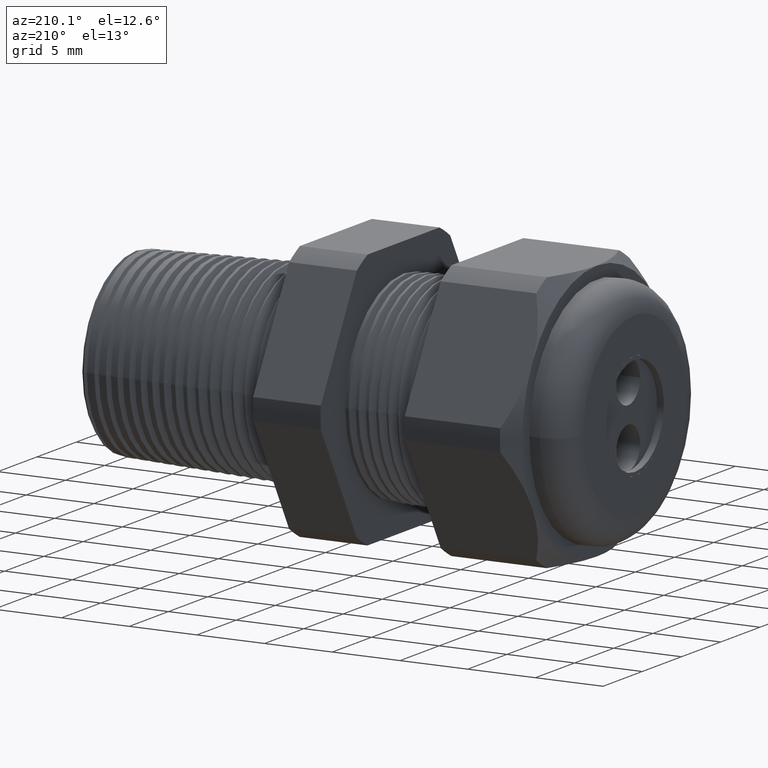
[diagram: clean part render]
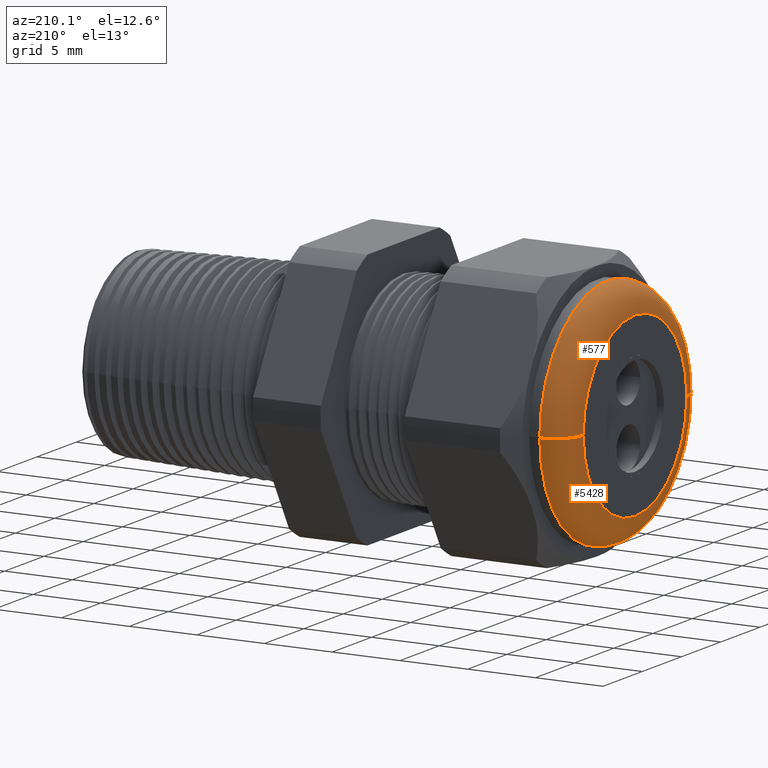
[diagram: same view with one multi-face feature highlighted, each face labeled with its STEP entity id]
A machine part, auxiliary view. The highlighted faces form ONE feature: a constant-radius fillet chain: 2 tangent blend faces with common blend radius 2.032 mm. The faces share edges in the B-rep.
Their STEP definitions:
[1] entity #5428 (Torus):
#310 = EDGE_CURVE ( 'NONE', #573, #572, #2325, .T. ) ;
#329 = EDGE_CURVE ( 'NONE', #576, #563, #2350, .T. ) ;
#550 = EDGE_CURVE ( 'NONE', #573, #563, #2738, .T. ) ;
#563 = VERTEX_POINT ( 'NONE', #2770 ) ;
#572 = VERTEX_POINT ( 'NONE', #2762 ) ;
#573 = VERTEX_POINT ( 'NONE', #2761 ) ;
#575 = EDGE_CURVE ( 'NONE', #572, #576, #2760, .T. ) ;
#576 = VERTEX_POINT ( 'NONE', #2755 ) ;
#2321 = DIRECTION ( 'NONE',  ( 0.0000000000000000000, -1.000000000000000000, 0.0000000000000000000 ) ) ;
#2322 = DIRECTION ( 'NONE',  ( 1.000000000000000000, -3.234525066229925200E-018, -0.0000000000000000000 ) ) ;
#2323 = CARTESIAN_POINT ( 'NONE',  ( -1.100000000000000100, -1.113192593333968200E-017, 0.0000000000000000000 ) ) ;
#2324 = AXIS2_PLACEMENT_3D ( 'NONE', #2323, #2322, #2321 ) ;
#2325 = CIRCLE ( 'NONE', #2324, 0.3399999999999999700 ) ;
#2346 = DIRECTION ( 'NONE',  ( 0.0000000000000000000, -1.000000000000000000, 0.0000000000000000000 ) ) ;
#2347 = DIRECTION ( 'NONE',  ( -1.000000000000000000, 3.234525066229925200E-018, 0.0000000000000000000 ) ) ;
#2348 = CARTESIAN_POINT ( 'NONE',  ( -1.179999999999999900, -1.087316392804128800E-017, 0.0000000000000000000 ) ) ;
#2349 = AXIS2_PLACEMENT_3D ( 'NONE', #2348, #2347, #2346 ) ;
#2350 = CIRCLE ( 'NONE', #2349, 0.2600000000000000100 ) ;
#2734 = DIRECTION ( 'NONE',  ( -1.000000000000000000, 0.0000000000000000000, 0.0000000000000000000 ) ) ;
#2735 = DIRECTION ( 'NONE',  ( -0.0000000000000000000, 0.0000000000000000000, -1.000000000000000000 ) ) ;
#2736 = CARTESIAN_POINT ( 'NONE',  ( -1.100000000000000100, -0.2600000000000000100, 0.0000000000000000000 ) ) ;
#2737 = AXIS2_PLACEMENT_3D ( 'NONE', #2736, #2735, #2734 ) ;
#2738 = CIRCLE ( 'NONE', #2737, 0.07999999999999996000 ) ;
#2755 = CARTESIAN_POINT ( 'NONE',  ( -1.179999999999999900, 0.2600000000000000100, 3.673819061467132000E-017 ) ) ;
#2756 = DIRECTION ( 'NONE',  ( 0.0000000000000000000, -1.000000000000000000, -1.224606353822377500E-016 ) ) ;
#2757 = DIRECTION ( 'NONE',  ( -3.961019947702912300E-034, -1.224606353822377300E-016, 1.000000000000000000 ) ) ;
#2758 = CARTESIAN_POINT ( 'NONE',  ( -1.100000000000000100, 0.2600000000000000100, 3.183976519938181000E-017 ) ) ;
#2759 = AXIS2_PLACEMENT_3D ( 'NONE', #2758, #2757, #2756 ) ;
#2760 = CIRCLE ( 'NONE', #2759, 0.08000000000000000200 ) ;
#2761 = CARTESIAN_POINT ( 'NONE',  ( -1.100000000000000100, -0.3399999999999999700, 4.163661602996082400E-017 ) ) ;
#2762 = CARTESIAN_POINT ( 'NONE',  ( -1.100000000000000100, 0.3399999999999999700, 0.0000000000000000000 ) ) ;
#2770 = CARTESIAN_POINT ( 'NONE',  ( -1.179999999999999900, -0.2600000000000000100, 0.0000000000000000000 ) ) ;
#5251 = DIRECTION ( 'NONE',  ( -3.234525066229925200E-018, -1.000000000000000000, 0.0000000000000000000 ) ) ;
#5252 = DIRECTION ( 'NONE',  ( -1.000000000000000000, 3.234525066229925200E-018, 0.0000000000000000000 ) ) ;
#5253 = AXIS2_PLACEMENT_3D ( 'NONE', #5255, #5252, #5251 ) ;
#5255 = CARTESIAN_POINT ( 'NONE',  ( -1.100000000000000100, -1.113192593333968200E-017, 0.0000000000000000000 ) ) ;
#5256 = TOROIDAL_SURFACE ( 'NONE', #5253, 0.2600000000000000100, 0.08000000000000000200 ) ;
#5260 = FACE_OUTER_BOUND ( 'NONE', #5427, .T. ) ;
#5423 = ORIENTED_EDGE ( 'NONE', *, *, #575, .F. ) ;
#5424 = ORIENTED_EDGE ( 'NONE', *, *, #329, .F. ) ;
#5426 = ORIENTED_EDGE ( 'NONE', *, *, #550, .T. ) ;
#5427 = EDGE_LOOP ( 'NONE', ( #5423, #5430, #5426, #5424 ) ) ;
#5428 = ADVANCED_FACE ( 'NONE', ( #5260 ), #5256, .T. ) ;
#5430 = ORIENTED_EDGE ( 'NONE', *, *, #310, .F. ) ;
[2] entity #577 (Torus):
#550 = EDGE_CURVE ( 'NONE', #573, #563, #2738, .T. ) ;
#561 = ORIENTED_EDGE ( 'NONE', *, *, #562, .F. ) ;
#562 = EDGE_CURVE ( 'NONE', #563, #576, #2775, .T. ) ;
#563 = VERTEX_POINT ( 'NONE', #2770 ) ;
#564 = ORIENTED_EDGE ( 'NONE', *, *, #550, .F. ) ;
#569 = EDGE_LOOP ( 'NONE', ( #578, #574, #561, #564 ) ) ;
#571 = EDGE_CURVE ( 'NONE', #572, #573, #2767, .T. ) ;
#572 = VERTEX_POINT ( 'NONE', #2762 ) ;
#573 = VERTEX_POINT ( 'NONE', #2761 ) ;
#574 = ORIENTED_EDGE ( 'NONE', *, *, #575, .T. ) ;
#575 = EDGE_CURVE ( 'NONE', #572, #576, #2760, .T. ) ;
#576 = VERTEX_POINT ( 'NONE', #2755 ) ;
#577 = ADVANCED_FACE ( 'NONE', ( #2754 ), #2753, .T. ) ;
#578 = ORIENTED_EDGE ( 'NONE', *, *, #571, .F. ) ;
#2734 = DIRECTION ( 'NONE',  ( -1.000000000000000000, 0.0000000000000000000, 0.0000000000000000000 ) ) ;
#2735 = DIRECTION ( 'NONE',  ( -0.0000000000000000000, 0.0000000000000000000, -1.000000000000000000 ) ) ;
#2736 = CARTESIAN_POINT ( 'NONE',  ( -1.100000000000000100, -0.2600000000000000100, 0.0000000000000000000 ) ) ;
#2737 = AXIS2_PLACEMENT_3D ( 'NONE', #2736, #2735, #2734 ) ;
#2738 = CIRCLE ( 'NONE', #2737, 0.07999999999999996000 ) ;
#2749 = DIRECTION ( 'NONE',  ( -3.234525066229925200E-018, -1.000000000000000000, 0.0000000000000000000 ) ) ;
#2750 = DIRECTION ( 'NONE',  ( -1.000000000000000000, 3.234525066229925200E-018, 0.0000000000000000000 ) ) ;
#2751 = CARTESIAN_POINT ( 'NONE',  ( -1.100000000000000100, -1.113192593333968200E-017, 0.0000000000000000000 ) ) ;
#2752 = AXIS2_PLACEMENT_3D ( 'NONE', #2751, #2750, #2749 ) ;
#2753 = TOROIDAL_SURFACE ( 'NONE', #2752, 0.2600000000000000100, 0.08000000000000000200 ) ;
#2754 = FACE_OUTER_BOUND ( 'NONE', #569, .T. ) ;
#2755 = CARTESIAN_POINT ( 'NONE',  ( -1.179999999999999900, 0.2600000000000000100, 3.673819061467132000E-017 ) ) ;
#2756 = DIRECTION ( 'NONE',  ( 0.0000000000000000000, -1.000000000000000000, -1.224606353822377500E-016 ) ) ;
#2757 = DIRECTION ( 'NONE',  ( -3.961019947702912300E-034, -1.224606353822377300E-016, 1.000000000000000000 ) ) ;
#2758 = CARTESIAN_POINT ( 'NONE',  ( -1.100000000000000100, 0.2600000000000000100, 3.183976519938181000E-017 ) ) ;
#2759 = AXIS2_PLACEMENT_3D ( 'NONE', #2758, #2757, #2756 ) ;
#2760 = CIRCLE ( 'NONE', #2759, 0.08000000000000000200 ) ;
#2761 = CARTESIAN_POINT ( 'NONE',  ( -1.100000000000000100, -0.3399999999999999700, 4.163661602996082400E-017 ) ) ;
#2762 = CARTESIAN_POINT ( 'NONE',  ( -1.100000000000000100, 0.3399999999999999700, 0.0000000000000000000 ) ) ;
#2763 = DIRECTION ( 'NONE',  ( 0.0000000000000000000, -1.000000000000000000, 0.0000000000000000000 ) ) ;
#2764 = DIRECTION ( 'NONE',  ( 1.000000000000000000, -3.234525066229925200E-018, -0.0000000000000000000 ) ) ;
#2765 = CARTESIAN_POINT ( 'NONE',  ( -1.100000000000000100, -1.113192593333968200E-017, 0.0000000000000000000 ) ) ;
#2766 = AXIS2_PLACEMENT_3D ( 'NONE', #2765, #2764, #2763 ) ;
#2767 = CIRCLE ( 'NONE', #2766, 0.3399999999999999700 ) ;
#2770 = CARTESIAN_POINT ( 'NONE',  ( -1.179999999999999900, -0.2600000000000000100, 0.0000000000000000000 ) ) ;
#2771 = DIRECTION ( 'NONE',  ( 0.0000000000000000000, -1.000000000000000000, 0.0000000000000000000 ) ) ;
#2772 = DIRECTION ( 'NONE',  ( -1.000000000000000000, 3.234525066229925200E-018, 0.0000000000000000000 ) ) ;
#2773 = CARTESIAN_POINT ( 'NONE',  ( -1.179999999999999900, -1.087316392804128800E-017, 0.0000000000000000000 ) ) ;
#2774 = AXIS2_PLACEMENT_3D ( 'NONE', #2773, #2772, #2771 ) ;
#2775 = CIRCLE ( 'NONE', #2774, 0.2600000000000000100 ) ;